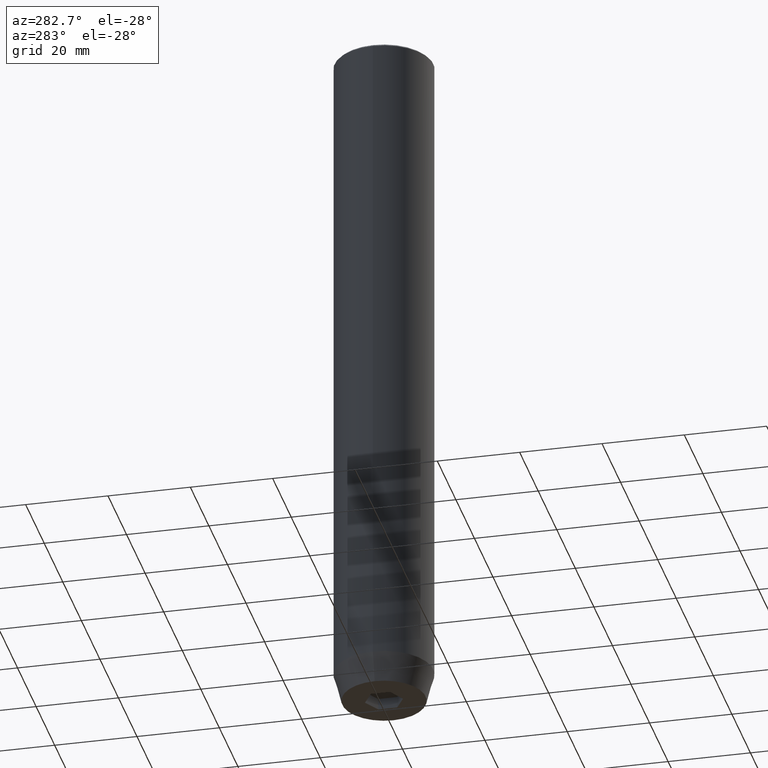
[diagram: clean part render]
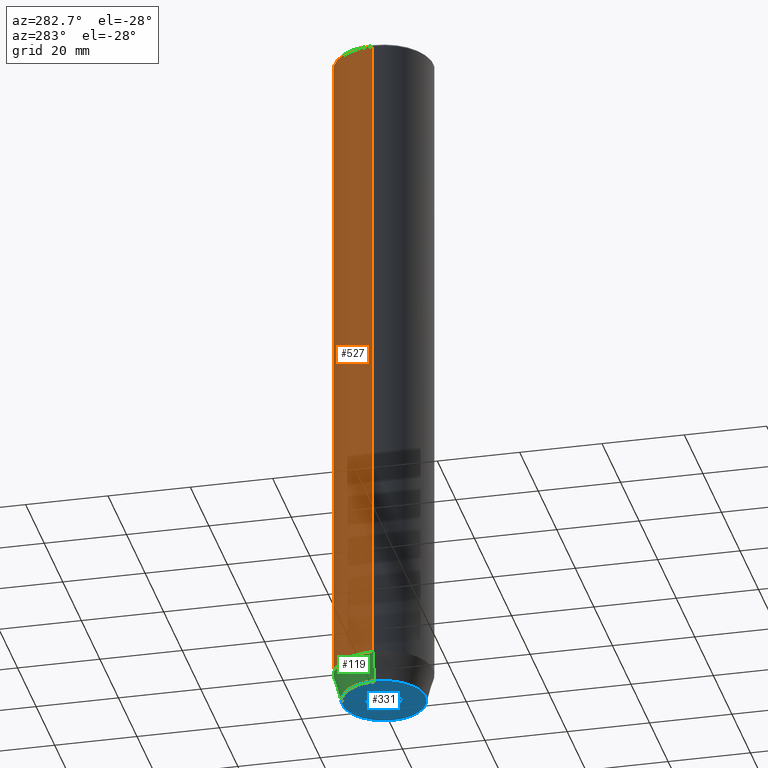
[diagram: same view with three faces highlighted in distinct colors, each labeled with its STEP entity id]
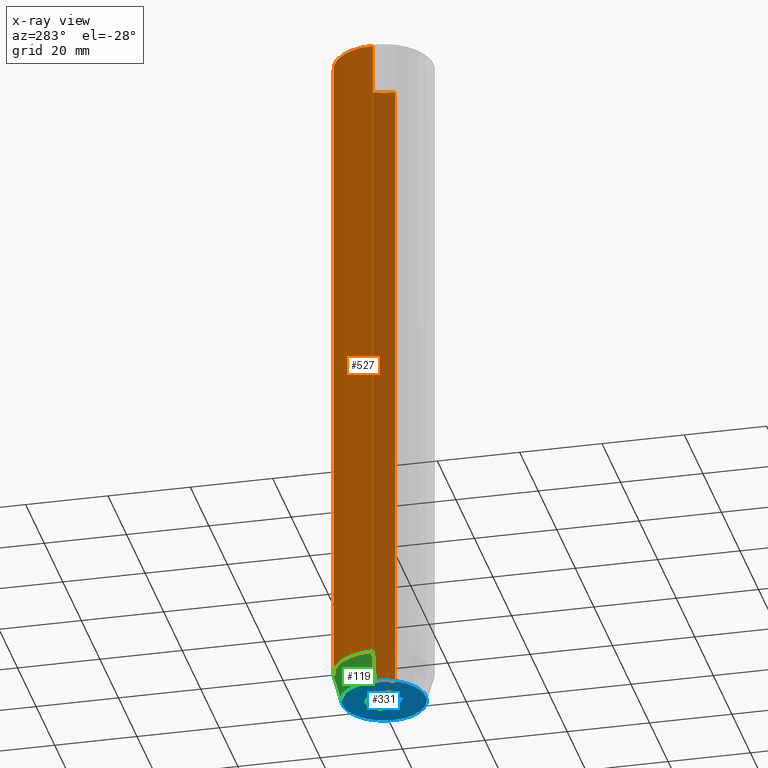
[diagram: x-ray of the same camera — body ghosted, the three highlighted faces saturated]
A machine part, auxiliary view with three faces highlighted in distinct colors.
The next image is the same camera in x-ray (body ghosted, the three faces saturated) — at least one of them is partly hidden behind the body in this view.
Their STEP definitions:

[orange] entity #527 — the highlighted cylindrical surface (partial cylindrical patch) has radius 12 mm, axis along (-0, -0, 1).
#3 = VECTOR ( 'NONE', #61, 1000.000000000000000 ) ;
#15 = CARTESIAN_POINT ( 'NONE',  ( 12.00000000000000000, 0.000000000000000000, -162.9999999999999716 ) ) ;
#55 = CARTESIAN_POINT ( 'NONE',  ( -12.00000000000000000, 1.469576158976823947E-15, -162.9999999999999716 ) ) ;
#61 = DIRECTION ( 'NONE',  ( -0.000000000000000000, -0.000000000000000000, 1.000000000000000000 ) ) ;
#66 = VERTEX_POINT ( 'NONE', #55 ) ;
#74 = AXIS2_PLACEMENT_3D ( 'NONE', #148, #334, #509 ) ;
#125 = ORIENTED_EDGE ( 'NONE', *, *, #300, .F. ) ;
#148 = CARTESIAN_POINT ( 'NONE',  ( 0.000000000000000000, 0.000000000000000000, 0.000000000000000000 ) ) ;
#154 = CARTESIAN_POINT ( 'NONE',  ( 0.000000000000000000, 0.000000000000000000, -0.5000000000000056621 ) ) ;
#159 = CARTESIAN_POINT ( 'NONE',  ( -12.00000000000000000, 1.469576158976823947E-15, -0.5000000000000056621 ) ) ;
#169 = ORIENTED_EDGE ( 'NONE', *, *, #427, .T. ) ;
#179 = LINE ( 'NONE', #401, #437 ) ;
#197 = VERTEX_POINT ( 'NONE', #159 ) ;
#273 = DIRECTION ( 'NONE',  ( 1.000000000000000000, 0.000000000000000000, 0.000000000000000000 ) ) ;
#275 = CIRCLE ( 'NONE', #316, 12.00000000000000000 ) ;
#279 = CARTESIAN_POINT ( 'NONE',  ( 0.000000000000000000, 0.000000000000000000, -162.9999999999999716 ) ) ;
#295 = ORIENTED_EDGE ( 'NONE', *, *, #499, .T. ) ;
#300 = EDGE_CURVE ( 'NONE', #495, #547, #514, .T. ) ;
#313 = DIRECTION ( 'NONE',  ( -0.000000000000000000, -0.000000000000000000, 1.000000000000000000 ) ) ;
#316 = AXIS2_PLACEMENT_3D ( 'NONE', #154, #370, #329 ) ;
#326 = AXIS2_PLACEMENT_3D ( 'NONE', #279, #545, #273 ) ;
#329 = DIRECTION ( 'NONE',  ( 1.000000000000000000, 0.000000000000000000, 0.000000000000000000 ) ) ;
#334 = DIRECTION ( 'NONE',  ( -0.000000000000000000, -0.000000000000000000, 1.000000000000000000 ) ) ;
#363 = CYLINDRICAL_SURFACE ( 'NONE', #74, 12.00000000000000000 ) ;
#365 = ORIENTED_EDGE ( 'NONE', *, *, #393, .T. ) ;
#370 = DIRECTION ( 'NONE',  ( 0.000000000000000000, 0.000000000000000000, -1.000000000000000000 ) ) ;
#393 = EDGE_CURVE ( 'NONE', #495, #66, #538, .T. ) ;
#401 = CARTESIAN_POINT ( 'NONE',  ( -12.00000000000000000, 1.469576158976823947E-15, 0.000000000000000000 ) ) ;
#422 = CARTESIAN_POINT ( 'NONE',  ( 12.00000000000000000, 0.000000000000000000, -0.5000000000000056621 ) ) ;
#427 = EDGE_CURVE ( 'NONE', #66, #197, #179, .T. ) ;
#437 = VECTOR ( 'NONE', #313, 1000.000000000000000 ) ;
#465 = FACE_OUTER_BOUND ( 'NONE', #541, .T. ) ;
#495 = VERTEX_POINT ( 'NONE', #15 ) ;
#499 = EDGE_CURVE ( 'NONE', #197, #547, #275, .T. ) ;
#509 = DIRECTION ( 'NONE',  ( 1.000000000000000000, 0.000000000000000000, 0.000000000000000000 ) ) ;
#514 = LINE ( 'NONE', #568, #3 ) ;
#527 = ADVANCED_FACE ( 'NONE', ( #465 ), #363, .T. ) ;
#538 = CIRCLE ( 'NONE', #326, 12.00000000000000000 ) ;
#541 = EDGE_LOOP ( 'NONE', ( #365, #169, #295, #125 ) ) ;
#545 = DIRECTION ( 'NONE',  ( -0.000000000000000000, -0.000000000000000000, 1.000000000000000000 ) ) ;
#547 = VERTEX_POINT ( 'NONE', #422 ) ;
#568 = CARTESIAN_POINT ( 'NONE',  ( 12.00000000000000000, 0.000000000000000000, 0.000000000000000000 ) ) ;

[blue] entity #331 — the highlighted planar face has unit normal (0, 0, -1).
#4 = EDGE_LOOP ( 'NONE', ( #36, #18 ) ) ;
#12 = CARTESIAN_POINT ( 'NONE',  ( -4.000000000000000000, 2.309401076758503368, -170.0000000000000000 ) ) ;
#18 = ORIENTED_EDGE ( 'NONE', *, *, #131, .F. ) ;
#19 = CARTESIAN_POINT ( 'NONE',  ( 2.000000000000000888, -3.464101615137754386, -170.0000000000000000 ) ) ;
#36 = ORIENTED_EDGE ( 'NONE', *, *, #206, .F. ) ;
#40 = LINE ( 'NONE', #407, #461 ) ;
#49 = CARTESIAN_POINT ( 'NONE',  ( -4.000000000000000000, -2.309401076758503368, -170.0000000000000000 ) ) ;
#56 = DIRECTION ( 'NONE',  ( -1.000000000000000000, 0.000000000000000000, -0.000000000000000000 ) ) ;
#62 = ORIENTED_EDGE ( 'NONE', *, *, #497, .F. ) ;
#86 = VERTEX_POINT ( 'NONE', #12 ) ;
#88 = DIRECTION ( 'NONE',  ( 0.000000000000000000, 1.000000000000000000, 0.000000000000000000 ) ) ;
#90 = ORIENTED_EDGE ( 'NONE', *, *, #211, .F. ) ;
#91 = LINE ( 'NONE', #446, #368 ) ;
#116 = FACE_BOUND ( 'NONE', #418, .T. ) ;
#127 = VERTEX_POINT ( 'NONE', #274 ) ;
#131 = EDGE_CURVE ( 'NONE', #304, #350, #170, .T. ) ;
#141 = DIRECTION ( 'NONE',  ( 0.000000000000000000, 0.000000000000000000, -1.000000000000000000 ) ) ;
#149 = VECTOR ( 'NONE', #565, 1000.000000000000114 ) ;
#153 = LINE ( 'NONE', #194, #252 ) ;
#155 = CARTESIAN_POINT ( 'NONE',  ( -10.12435565298212836, 1.354726066681110655E-15, -170.0000000000000000 ) ) ;
#170 = CIRCLE ( 'NONE', #269, 10.12435565298212836 ) ;
#177 = DIRECTION ( 'NONE',  ( 1.000000000000000000, 0.000000000000000000, 0.000000000000000000 ) ) ;
#181 = CIRCLE ( 'NONE', #410, 10.12435565298212836 ) ;
#194 = CARTESIAN_POINT ( 'NONE',  ( 2.000000000000000444, 3.464101615137754386, -170.0000000000000000 ) ) ;
#198 = CARTESIAN_POINT ( 'NONE',  ( -2.000000000000000888, -3.464101615137754386, -170.0000000000000000 ) ) ;
#206 = EDGE_CURVE ( 'NONE', #350, #304, #181, .T. ) ;
#211 = EDGE_CURVE ( 'NONE', #86, #434, #483, .T. ) ;
#218 = CARTESIAN_POINT ( 'NONE',  ( 4.336808689942017736E-16, -4.618802153517006737, -170.0000000000000000 ) ) ;
#226 = CARTESIAN_POINT ( 'NONE',  ( 10.12435565298212836, 0.000000000000000000, -170.0000000000000000 ) ) ;
#228 = DIRECTION ( 'NONE',  ( 0.000000000000000000, -1.000000000000000000, 0.000000000000000000 ) ) ;
#232 = DIRECTION ( 'NONE',  ( -0.8660254037844384856, -0.5000000000000002220, 0.000000000000000000 ) ) ;
#243 = VERTEX_POINT ( 'NONE', #218 ) ;
#244 = CARTESIAN_POINT ( 'NONE',  ( 4.000000000000000000, -2.309401076758502480, -170.0000000000000000 ) ) ;
#249 = ORIENTED_EDGE ( 'NONE', *, *, #528, .F. ) ;
#252 = VECTOR ( 'NONE', #366, 1000.000000000000000 ) ;
#255 = CARTESIAN_POINT ( 'NONE',  ( 0.000000000000000000, 0.000000000000000000, -170.0000000000000000 ) ) ;
#260 = DIRECTION ( 'NONE',  ( 0.8660254037844387076, 0.5000000000000001110, 0.000000000000000000 ) ) ;
#266 = EDGE_CURVE ( 'NONE', #127, #584, #40, .T. ) ;
#269 = AXIS2_PLACEMENT_3D ( 'NONE', #445, #301, #372 ) ;
#274 = CARTESIAN_POINT ( 'NONE',  ( 4.000000000000000000, 2.309401076758503368, -170.0000000000000000 ) ) ;
#301 = DIRECTION ( 'NONE',  ( -0.000000000000000000, -0.000000000000000000, 1.000000000000000000 ) ) ;
#304 = VERTEX_POINT ( 'NONE', #155 ) ;
#309 = AXIS2_PLACEMENT_3D ( 'NONE', #456, #141, #56 ) ;
#315 = CARTESIAN_POINT ( 'NONE',  ( -4.336808689942017736E-16, 4.618802153517006737, -170.0000000000000000 ) ) ;
#331 = ADVANCED_FACE ( 'NONE', ( #116, #406 ), #550, .T. ) ;
#350 = VERTEX_POINT ( 'NONE', #226 ) ;
#351 = VERTEX_POINT ( 'NONE', #49 ) ;
#366 = DIRECTION ( 'NONE',  ( 0.8660254037844385966, -0.5000000000000001110, 0.000000000000000000 ) ) ;
#367 = DIRECTION ( 'NONE',  ( -0.000000000000000000, -0.000000000000000000, 1.000000000000000000 ) ) ;
#368 = VECTOR ( 'NONE', #88, 1000.000000000000000 ) ;
#372 = DIRECTION ( 'NONE',  ( 1.000000000000000000, 0.000000000000000000, 0.000000000000000000 ) ) ;
#406 = FACE_OUTER_BOUND ( 'NONE', #4, .T. ) ;
#407 = CARTESIAN_POINT ( 'NONE',  ( 4.000000000000000000, 0.000000000000000000, -170.0000000000000000 ) ) ;
#410 = AXIS2_PLACEMENT_3D ( 'NONE', #255, #367, #177 ) ;
#418 = EDGE_LOOP ( 'NONE', ( #90, #471, #249, #490, #587, #62 ) ) ;
#434 = VERTEX_POINT ( 'NONE', #315 ) ;
#439 = EDGE_CURVE ( 'NONE', #351, #86, #91, .T. ) ;
#445 = CARTESIAN_POINT ( 'NONE',  ( 0.000000000000000000, 0.000000000000000000, -170.0000000000000000 ) ) ;
#446 = CARTESIAN_POINT ( 'NONE',  ( -4.000000000000000000, 0.000000000000000000, -170.0000000000000000 ) ) ;
#456 = CARTESIAN_POINT ( 'NONE',  ( 0.000000000000000000, 10.12435565298212836, -170.0000000000000000 ) ) ;
#461 = VECTOR ( 'NONE', #228, 1000.000000000000000 ) ;
#467 = VECTOR ( 'NONE', #232, 1000.000000000000114 ) ;
#471 = ORIENTED_EDGE ( 'NONE', *, *, #439, .F. ) ;
#473 = LINE ( 'NONE', #19, #467 ) ;
#483 = LINE ( 'NONE', #578, #488 ) ;
#488 = VECTOR ( 'NONE', #260, 999.9999999999998863 ) ;
#490 = ORIENTED_EDGE ( 'NONE', *, *, #535, .F. ) ;
#497 = EDGE_CURVE ( 'NONE', #434, #127, #153, .T. ) ;
#528 = EDGE_CURVE ( 'NONE', #243, #351, #557, .T. ) ;
#535 = EDGE_CURVE ( 'NONE', #584, #243, #473, .T. ) ;
#550 = PLANE ( 'NONE',  #309 ) ;
#557 = LINE ( 'NONE', #198, #149 ) ;
#565 = DIRECTION ( 'NONE',  ( -0.8660254037844384856, 0.5000000000000002220, 0.000000000000000000 ) ) ;
#578 = CARTESIAN_POINT ( 'NONE',  ( -2.000000000000000000, 3.464101615137754830, -170.0000000000000000 ) ) ;
#584 = VERTEX_POINT ( 'NONE', #244 ) ;
#587 = ORIENTED_EDGE ( 'NONE', *, *, #266, .F. ) ;

[green] entity #119 — the highlighted conical surface has half-angle 15 deg.
#15 = CARTESIAN_POINT ( 'NONE',  ( 12.00000000000000000, 0.000000000000000000, -162.9999999999999716 ) ) ;
#45 = ORIENTED_EDGE ( 'NONE', *, *, #345, .F. ) ;
#48 = VECTOR ( 'NONE', #347, 1000.000000000000114 ) ;
#55 = CARTESIAN_POINT ( 'NONE',  ( -12.00000000000000000, 1.469576158976823947E-15, -162.9999999999999716 ) ) ;
#66 = VERTEX_POINT ( 'NONE', #55 ) ;
#70 = VECTOR ( 'NONE', #529, 1000.000000000000114 ) ;
#93 = LINE ( 'NONE', #99, #48 ) ;
#99 = CARTESIAN_POINT ( 'NONE',  ( 12.00000000000000000, 0.000000000000000000, -162.9999999999999716 ) ) ;
#119 = ADVANCED_FACE ( 'NONE', ( #522 ), #428, .T. ) ;
#122 = ORIENTED_EDGE ( 'NONE', *, *, #393, .F. ) ;
#137 = EDGE_CURVE ( 'NONE', #304, #66, #380, .T. ) ;
#155 = CARTESIAN_POINT ( 'NONE',  ( -10.12435565298212836, 1.354726066681110655E-15, -170.0000000000000000 ) ) ;
#177 = DIRECTION ( 'NONE',  ( 1.000000000000000000, 0.000000000000000000, 0.000000000000000000 ) ) ;
#180 = DIRECTION ( 'NONE',  ( 1.000000000000000000, 0.000000000000000000, 0.000000000000000000 ) ) ;
#181 = CIRCLE ( 'NONE', #410, 10.12435565298212836 ) ;
#206 = EDGE_CURVE ( 'NONE', #350, #304, #181, .T. ) ;
#226 = CARTESIAN_POINT ( 'NONE',  ( 10.12435565298212836, 0.000000000000000000, -170.0000000000000000 ) ) ;
#255 = CARTESIAN_POINT ( 'NONE',  ( 0.000000000000000000, 0.000000000000000000, -170.0000000000000000 ) ) ;
#273 = DIRECTION ( 'NONE',  ( 1.000000000000000000, 0.000000000000000000, 0.000000000000000000 ) ) ;
#279 = CARTESIAN_POINT ( 'NONE',  ( 0.000000000000000000, 0.000000000000000000, -162.9999999999999716 ) ) ;
#291 = ORIENTED_EDGE ( 'NONE', *, *, #137, .T. ) ;
#304 = VERTEX_POINT ( 'NONE', #155 ) ;
#326 = AXIS2_PLACEMENT_3D ( 'NONE', #279, #545, #273 ) ;
#339 = DIRECTION ( 'NONE',  ( -0.000000000000000000, -0.000000000000000000, 1.000000000000000000 ) ) ;
#345 = EDGE_CURVE ( 'NONE', #350, #495, #93, .T. ) ;
#347 = DIRECTION ( 'NONE',  ( 0.2588190451025212391, 0.000000000000000000, 0.9659258262890680902 ) ) ;
#350 = VERTEX_POINT ( 'NONE', #226 ) ;
#367 = DIRECTION ( 'NONE',  ( -0.000000000000000000, -0.000000000000000000, 1.000000000000000000 ) ) ;
#380 = LINE ( 'NONE', #562, #70 ) ;
#392 = ORIENTED_EDGE ( 'NONE', *, *, #206, .T. ) ;
#393 = EDGE_CURVE ( 'NONE', #495, #66, #538, .T. ) ;
#410 = AXIS2_PLACEMENT_3D ( 'NONE', #255, #367, #177 ) ;
#428 = CONICAL_SURFACE ( 'NONE', #523, 12.00000000000000000, 0.2617993877991499629 ) ;
#486 = EDGE_LOOP ( 'NONE', ( #392, #291, #122, #45 ) ) ;
#495 = VERTEX_POINT ( 'NONE', #15 ) ;
#522 = FACE_OUTER_BOUND ( 'NONE', #486, .T. ) ;
#523 = AXIS2_PLACEMENT_3D ( 'NONE', #525, #339, #180 ) ;
#525 = CARTESIAN_POINT ( 'NONE',  ( 0.000000000000000000, 0.000000000000000000, -162.9999999999999716 ) ) ;
#529 = DIRECTION ( 'NONE',  ( -0.2588190451025212391, 3.169619151431771721E-17, 0.9659258262890680902 ) ) ;
#538 = CIRCLE ( 'NONE', #326, 12.00000000000000000 ) ;
#545 = DIRECTION ( 'NONE',  ( -0.000000000000000000, -0.000000000000000000, 1.000000000000000000 ) ) ;
#562 = CARTESIAN_POINT ( 'NONE',  ( -12.00000000000000000, 1.469576158976823947E-15, -162.9999999999999716 ) ) ;